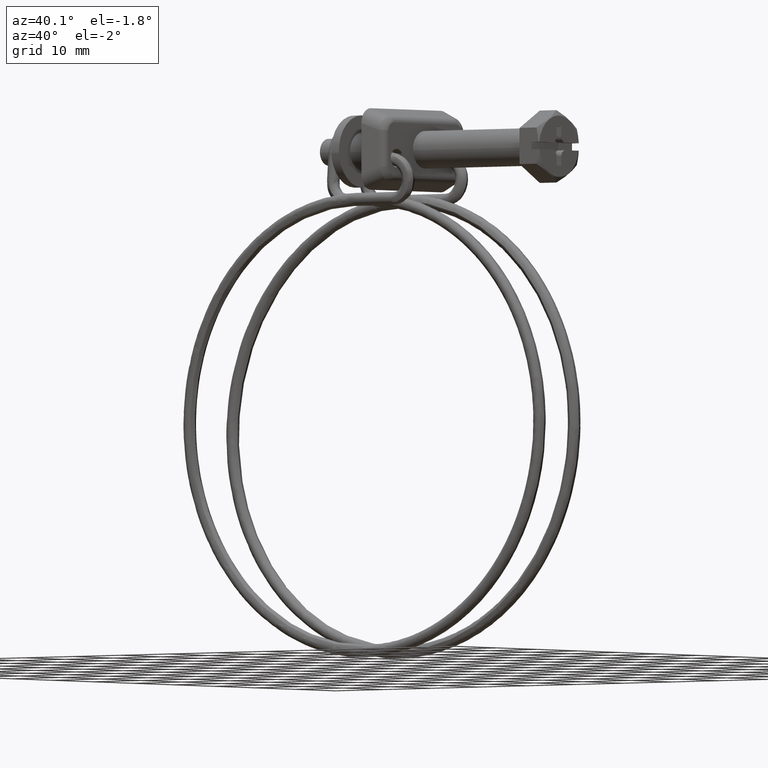
[diagram: clean part render]
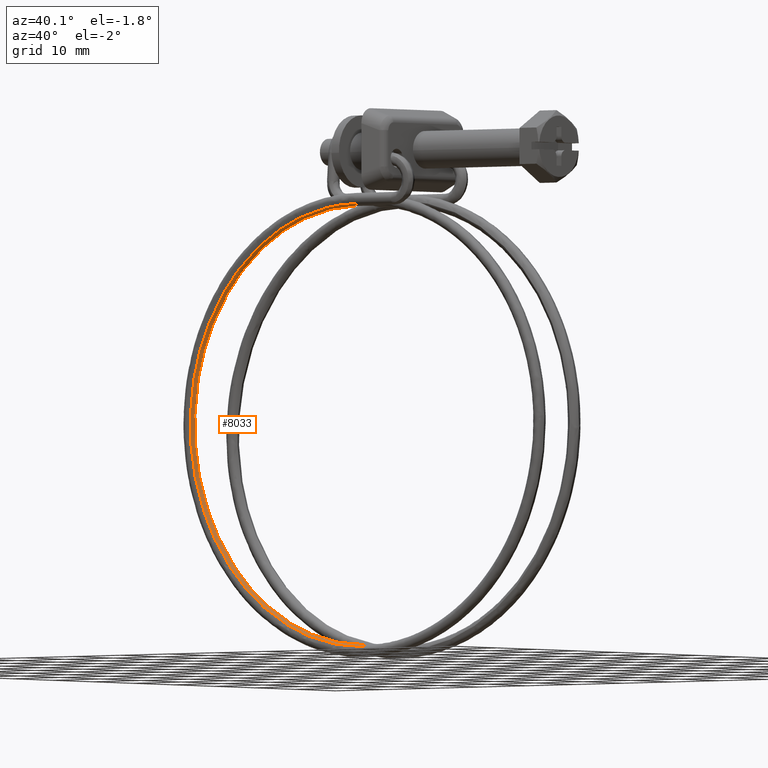
[diagram: same view with one face highlighted and labeled with its STEP entity id]
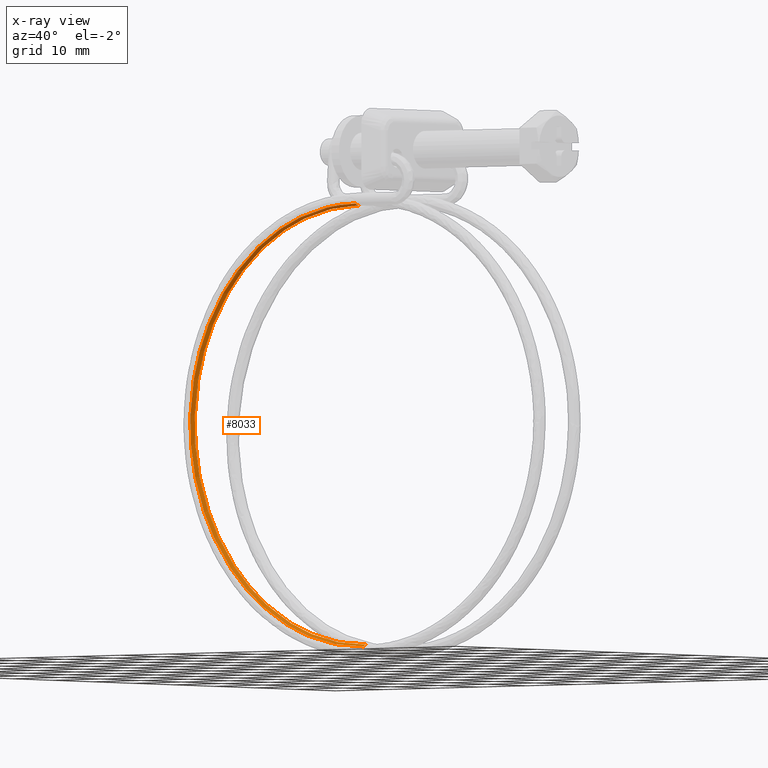
[diagram: x-ray of the same camera — body ghosted, the highlighted face saturated]
A machine part, auxiliary view. The second image highlights one B-rep face of the part: STEP entity #8033.
The next image is the same camera in x-ray: the body ghosted, the highlighted face saturated — about 0% of this face is hidden behind the body in this view.
In plain terms, the highlighted face is a freeform B-spline surface patch.
Its self-contained STEP definition (entity closure, byte-faithful):
#5989=CARTESIAN_POINT('',(-32.449999999999051,-6.999624990311949,-8.574138975857224));
#5990=VERTEX_POINT('',#5989);
#6002=CARTESIAN_POINT('',(-32.449999999999051,-6.254212118802980,-8.848443533284414));
#6003=VERTEX_POINT('',#6002);
#6004=CARTESIAN_POINT('',(-32.449999999999051,-6.254212118802980,-8.848443533284414));
#6005=CARTESIAN_POINT('',(-32.449999999999051,-6.515603762769429,-8.863049282718350));
#6006=CARTESIAN_POINT('',(-32.449999999999051,-6.781398445954240,-8.769959849010869));
#6007=CARTESIAN_POINT('',(-32.449999999999051,-6.984364839128974,-8.588475370905668));
#6008=CARTESIAN_POINT('',(-32.449999999999051,-6.992054730755125,-8.581368035330897));
#6009=CARTESIAN_POINT('',(-32.449999999999051,-6.999624990311949,-8.574138975857224));
#6010=B_SPLINE_CURVE_WITH_KNOTS('',3,(#6004,#6005,#6006,#6007,#6008,#6009),.UNSPECIFIED.,.F.,.U.,(4,2,4),(0.0,0.125000000000000,0.130000243116999),.UNSPECIFIED.);
#6011=EDGE_CURVE('',#6003,#5990,#6010,.T.);
#6638=CARTESIAN_POINT('',(-32.450000000000763,-4.300002000000005,-78.850001000000191));
#6639=VERTEX_POINT('',#6638);
#6651=CARTESIAN_POINT('',(-32.450000000000763,-5.028950504759390,-79.165464811943224));
#6652=VERTEX_POINT('',#6651);
#6653=CARTESIAN_POINT('',(-32.450000000000770,-4.300002000000001,-78.850001000000191));
#6654=CARTESIAN_POINT('',(-32.450000000000770,-4.561801387799149,-78.850001000000191));
#6655=CARTESIAN_POINT('',(-32.450000000000763,-4.821988658763281,-78.957774096390395));
#6656=CARTESIAN_POINT('',(-32.450000000000777,-5.014513946130265,-79.150299383757385));
#6657=CARTESIAN_POINT('',(-32.450000000000777,-5.021795343797236,-79.157824667819114));
#6658=CARTESIAN_POINT('',(-32.450000000000763,-5.028950504759390,-79.165464811943224));
#6659=B_SPLINE_CURVE_WITH_KNOTS('',3,(#6653,#6654,#6655,#6656,#6657,#6658),.UNSPECIFIED.,.F.,.U.,(4,2,4),(0.0,0.125000000000000,0.130000243116998),.UNSPECIFIED.);
#6660=EDGE_CURVE('',#6639,#6652,#6659,.T.);
#7926=CARTESIAN_POINT('',(-32.450000000000749,-4.300002000000009,-78.850001000000191));
#7927=CARTESIAN_POINT('',(-37.032569200888702,-4.300002886029685,-78.850000999999509));
#7928=CARTESIAN_POINT('',(-41.611706479668122,-4.325436354029193,-77.938919648999345));
#7929=CARTESIAN_POINT('',(-50.077380877555200,-4.423334008739853,-74.432137938920704));
#7930=CARTESIAN_POINT('',(-53.959843398148202,-4.495758791421531,-71.837817329366814));
#7931=CARTESIAN_POINT('',(-60.438959384757737,-4.676641803512391,-65.358425761288814));
#7932=CARTESIAN_POINT('',(-63.033066550608140,-4.785028937820025,-61.475901493409900));
#7933=CARTESIAN_POINT('',(-66.539471047121495,-5.021358245118305,-53.010373950327747));
#7934=CARTESIAN_POINT('',(-67.450389442511607,-5.149207505489805,-48.430698888136902));
#7935=CARTESIAN_POINT('',(-67.450389442511607,-5.405006613312215,-39.267745645146327));
#7936=CARTESIAN_POINT('',(-66.539471047218854,-5.532855873688840,-34.688070582946899));
#7937=CARTESIAN_POINT('',(-63.033066550509247,-5.769185180976895,-26.222543039881149));
#7938=CARTESIAN_POINT('',(-60.438959384732200,-5.877572315285535,-22.340018771945800));
#7939=CARTESIAN_POINT('',(-53.959843398171699,-6.058455327384570,-15.860627203965869));
#7940=CARTESIAN_POINT('',(-50.077380877586251,-6.130880110063171,-13.266306594379611));
#7941=CARTESIAN_POINT('',(-41.611706479633732,-6.228777764771786,-9.759524884268235));
#7942=CARTESIAN_POINT('',(-37.032569170647399,-6.254366058189950,-8.848474908465246));
#7943=CARTESIAN_POINT('',(-32.449999999999051,-6.254212118802980,-8.848443533284414));
#7944=B_SPLINE_CURVE_WITH_KNOTS('',3,(#7926,#7927,#7928,#7929,#7930,#7931,#7932,#7933,#7934,#7935,#7936,#7937,#7938,#7939,#7940,#7941,#7942,#7943),.UNSPECIFIED.,.F.,.U.,(4,2,2,2,2,2,2,2,4),(0.454065442153271,0.510831819291381,0.567598196429491,0.624364573567601,0.681130950705712,0.737897327843822,0.794663704981932,0.851430082120042,0.908196459258153),.UNSPECIFIED.);
#7945=EDGE_CURVE('',#6639,#6003,#7944,.T.);
#7950=CARTESIAN_POINT('',(-32.450000000000763,-5.028950504759390,-79.165464811943224));
#7951=CARTESIAN_POINT('',(-37.071208723744121,-5.028950876147269,-79.165464273201195));
#7952=CARTESIAN_POINT('',(-41.688955931150637,-5.054598811355085,-78.246700237019340));
#7953=CARTESIAN_POINT('',(-50.225998744340110,-5.153321775446167,-74.710355205418125));
#7954=CARTESIAN_POINT('',(-54.141184981574177,-5.226357050569995,-72.094166209538074));
#7955=CARTESIAN_POINT('',(-60.674898833849703,-5.408764317888529,-65.560174453534003));
#7956=CARTESIAN_POINT('',(-63.290859179169203,-5.518064602327671,-61.644940329707310));
#7957=CARTESIAN_POINT('',(-66.826798705096607,-5.756384550764446,-53.108106237370883));
#7958=CARTESIAN_POINT('',(-67.745387969907995,-5.885310526889394,-48.489862252259890));
#7959=CARTESIAN_POINT('',(-67.745387969907995,-6.143263894153995,-39.249741505555953));
#7960=CARTESIAN_POINT('',(-66.826798705175776,-6.272189870281909,-34.631497520453713));
#7961=CARTESIAN_POINT('',(-63.290859179088542,-6.510509818712764,-26.094663428099050));
#7962=CARTESIAN_POINT('',(-60.674898833797712,-6.619810103151892,-22.179429304216651));
#7963=CARTESIAN_POINT('',(-54.141184981624072,-6.802217370476344,-15.645437548343700));
#7964=CARTESIAN_POINT('',(-50.225998744354897,-6.875252645599231,-13.029248552365900));
#7965=CARTESIAN_POINT('',(-41.688955931132512,-6.973975609686248,-9.492903520829774));
#7966=CARTESIAN_POINT('',(-37.071208693116823,-6.999779024524265,-8.574171277768810));
#7967=CARTESIAN_POINT('',(-32.449999999999051,-6.999624990311949,-8.574138975857224));
#7968=B_SPLINE_CURVE_WITH_KNOTS('',3,(#7950,#7951,#7952,#7953,#7954,#7955,#7956,#7957,#7958,#7959,#7960,#7961,#7962,#7963,#7964,#7965,#7966,#7967),.UNSPECIFIED.,.F.,.U.,(4,2,2,2,2,2,2,2,4),(0.454065442153271,0.510831819291381,0.567598196429491,0.624364573567601,0.681130950705712,0.737897327843822,0.794663704981932,0.851430082120042,0.908196459258153),.UNSPECIFIED.);
#7969=EDGE_CURVE('',#6652,#5990,#7968,.T.);
#7974=CARTESIAN_POINT('',(-31.900089916832599,-4.295917819498673,-78.850001000012696));
#7975=CARTESIAN_POINT('',(-31.900228909267909,-4.570927545830251,-78.848831941370335));
#7976=CARTESIAN_POINT('',(-31.898496405396870,-4.844580295030997,-78.966739600508035));
#7977=CARTESIAN_POINT('',(-31.895409364362472,-5.031740985493110,-79.168444536706829));
#7978=CARTESIAN_POINT('',(-32.083390642163543,-4.295937387227760,-78.849301287210594));
#7979=CARTESIAN_POINT('',(-32.083483304468380,-4.570947108609397,-78.848132405705357));
#7980=CARTESIAN_POINT('',(-32.082328293395300,-4.844599919459818,-78.966037860486679));
#7981=CARTESIAN_POINT('',(-32.080270250906999,-5.031760719775753,-79.167738868586596));
#7982=CARTESIAN_POINT('',(-36.849011483720432,-4.294900590246307,-78.886471681556884));
#7983=CARTESIAN_POINT('',(-36.847899613831778,-4.569910573654859,-78.885293409527449));
#7984=CARTESIAN_POINT('',(-36.861758777318862,-4.843560117121472,-79.003316007537933));
#7985=CARTESIAN_POINT('',(-36.886453559896957,-5.030715095596621,-79.205225738308201));
#7986=CARTESIAN_POINT('',(-46.192905866161013,-4.346793604264540,-77.027577702421709));
#7987=CARTESIAN_POINT('',(-46.189432307906017,-4.621790470326498,-77.026869311173058));
#7988=CARTESIAN_POINT('',(-46.232729290796527,-4.895603519667682,-77.139034852458693));
#7989=CARTESIAN_POINT('',(-46.309877495296007,-5.083049838966772,-77.330508267238272));
#7990=CARTESIAN_POINT('',(-57.843837085489483,-4.564134394499686,-69.242248946714454));
#7991=CARTESIAN_POINT('',(-57.837419836472762,-4.839076342443912,-69.243507769781388));
#7992=CARTESIAN_POINT('',(-57.917409144353989,-5.113573931030081,-69.331152544714200));
#7993=CARTESIAN_POINT('',(-58.059937123713759,-5.302239988338568,-69.478933925813493));
#7994=CARTESIAN_POINT('',(-65.628480485874235,-4.889374488013155,-57.591855193352870));
#7995=CARTESIAN_POINT('',(-65.620097446065415,-5.164234297493212,-57.596056290120472));
#7996=CARTESIAN_POINT('',(-65.724589815020664,-5.439755720355487,-57.647026396808528));
#7997=CARTESIAN_POINT('',(-65.910778276955028,-5.630246084358082,-57.729459465065077));
#7998=CARTESIAN_POINT('',(-68.361495051936245,-5.273026044428900,-43.849112683156072));
#7999=CARTESIAN_POINT('',(-68.352422125031723,-5.547789000722635,-43.856783147844943));
#8000=CARTESIAN_POINT('',(-68.465513753824780,-5.824517672876338,-43.864508503164657));
#8001=CARTESIAN_POINT('',(-68.667024702728767,-6.017159159407254,-43.869886435004247));
#8002=CARTESIAN_POINT('',(-65.628471475446688,-5.656677237248335,-30.106383197319090));
#8003=CARTESIAN_POINT('',(-65.620088437583561,-5.931343340444409,-30.117523026717251));
#8004=CARTESIAN_POINT('',(-65.724580782311094,-6.209279260774661,-30.082003670613339));
#8005=CARTESIAN_POINT('',(-65.910769201090190,-6.404071867846345,-30.010326537235780));
#8006=CARTESIAN_POINT('',(-57.843838823552183,-5.981928698110234,-18.455965701511680));
#8007=CARTESIAN_POINT('',(-57.837421574160572,-6.256512661301603,-18.470047810641109));
#8008=CARTESIAN_POINT('',(-57.917410886712091,-6.535472435008678,-18.397853717589680));
#8009=CARTESIAN_POINT('',(-58.059938874385033,-6.732089382606873,-18.260828148419691));
#8010=CARTESIAN_POINT('',(-46.192905285273902,-6.199205465627536,-10.670629620185130));
#8011=CARTESIAN_POINT('',(-46.189431727141312,-6.473734518918193,-10.686678944318510));
#8012=CARTESIAN_POINT('',(-46.232728708496452,-6.753378730090034,-10.589964037761559));
#8013=CARTESIAN_POINT('',(-46.309876910257579,-6.951215235557418,-10.409246353856339));
#8014=CARTESIAN_POINT('',(-36.849011575393547,-6.251292287573017,-8.811773194763241));
#8015=CARTESIAN_POINT('',(-36.847899705483798,-6.525808198692793,-8.828292393852856));
#8016=CARTESIAN_POINT('',(-36.861758869158443,-6.805616223215124,-8.725720620571146));
#8017=CARTESIAN_POINT('',(-36.886453652085827,-7.003744613686924,-8.534566950376366));
#8018=CARTESIAN_POINT('',(-32.083390644627499,-6.250102320164546,-8.848912837964127));
#8019=CARTESIAN_POINT('',(-32.083483306932003,-6.524618512926965,-8.865422651386366));
#8020=CARTESIAN_POINT('',(-32.082328295871413,-6.804423027104551,-8.762967867889511));
#8021=CARTESIAN_POINT('',(-32.080270253402738,-7.002545165737801,-8.572022653918021));
#8022=CARTESIAN_POINT('',(-31.900089920459759,-6.250115932679123,-8.848211918345195));
#8023=CARTESIAN_POINT('',(-31.900228912894551,-6.524632121254233,-8.864721909095792));
#8024=CARTESIAN_POINT('',(-31.898496409041890,-6.804436687635680,-8.762264915243319));
#8025=CARTESIAN_POINT('',(-31.895409368036379,-7.002558919405418,-8.571315762751961));
#8026=B_SPLINE_SURFACE_WITH_KNOTS('',3,3,((#7974,#7978,#7982,#7986,#7990,#7994,#7998,#8002,#8006,#8010,#8014,#8018,#8022),(#7975,#7979,#7983,#7987,#7991,#7995,#7999,#8003,#8007,#8011,#8015,#8019,#8023),(#7976,#7980,#7984,#7988,#7992,#7996,#8000,#8004,#8008,#8012,#8016,#8020,#8024),(#7977,#7981,#7985,#7989,#7993,#7997,#8001,#8005,#8009,#8013,#8017,#8021,#8025)),.UNSPECIFIED.,.F.,.F.,.U.,(4,4),(4,1,1,1,1,1,1,1,1,1,4),(0.0,0.825537289570899),(0.0,0.554598630448906,14.419564701575171,28.284530772701441,42.149496843827698,56.014462914954208,69.879428986080455,83.744395057206717,97.609361128332992,111.474327199459490,112.028925829908300),.UNSPECIFIED.);
#8027=ORIENTED_EDGE('',*,*,#6011,.T.);
#8028=ORIENTED_EDGE('',*,*,#7969,.F.);
#8029=ORIENTED_EDGE('',*,*,#6660,.F.);
#8030=ORIENTED_EDGE('',*,*,#7945,.T.);
#8031=EDGE_LOOP('',(#8027,#8028,#8029,#8030));
#8032=FACE_OUTER_BOUND('',#8031,.T.);
#8033=ADVANCED_FACE('',(#8032),#8026,.F.);